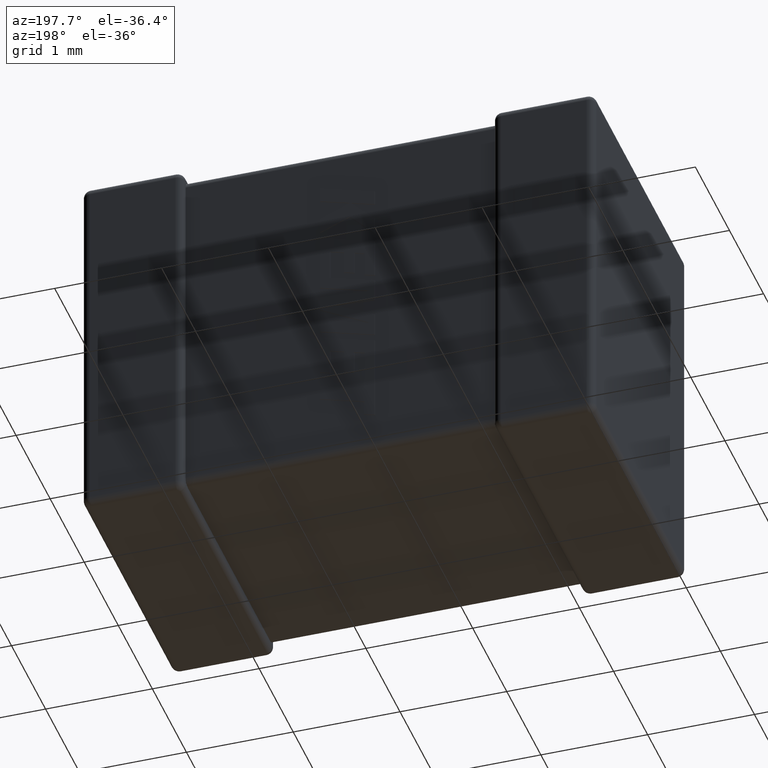
[diagram: clean part render]
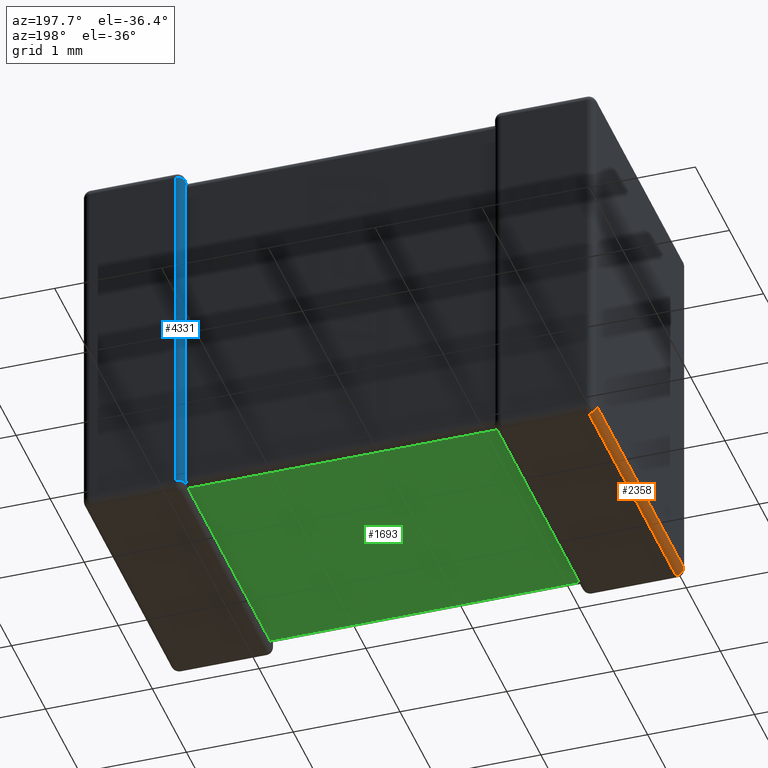
[diagram: same view with three faces highlighted in distinct colors, each labeled with its STEP entity id]
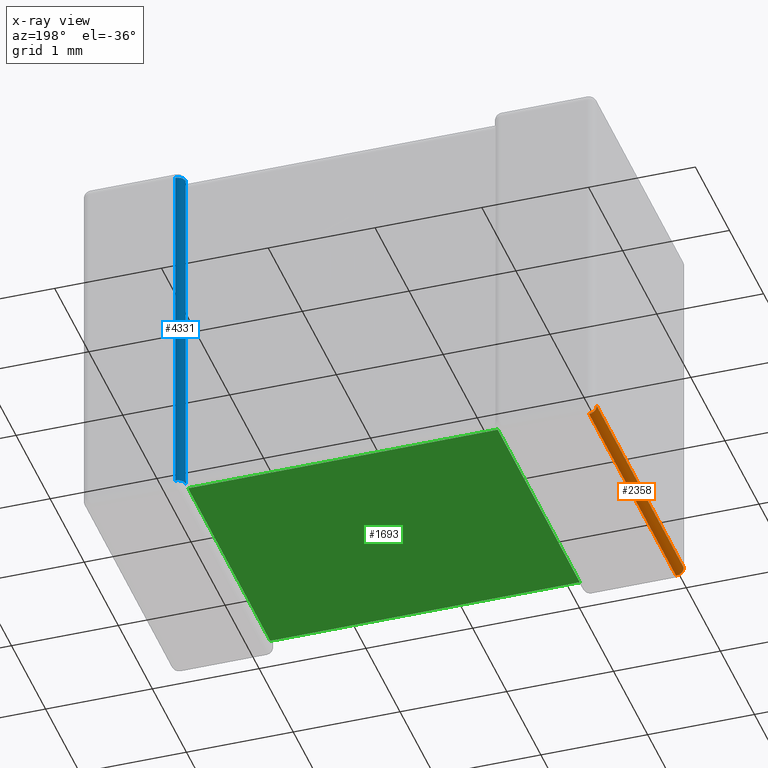
[diagram: x-ray of the same camera — body ghosted, the three highlighted faces saturated]
A machine part, auxiliary view with three faces highlighted in distinct colors.
The next image is the same camera in x-ray (body ghosted, the three faces saturated) — at least one of them is partly hidden behind the body in this view.
Their STEP definitions:

[orange] entity #2358 — the highlighted cylindrical surface (edge-blend (fillet) strip) has radius 0.0728 mm, axis along (0, -1, 0).
#1 = AXIS2_PLACEMENT_3D ( 'NONE', #931, #260, #1677 ) ;
#225 = CARTESIAN_POINT ( 'NONE',  ( 0.07279999999999960114, 0.000000000000000000, -3.427200000000000024 ) ) ;
#260 = DIRECTION ( 'NONE',  ( -0.000000000000000000, -1.000000000000000000, -0.000000000000000000 ) ) ;
#332 = DIRECTION ( 'NONE',  ( 0.000000000000000000, 0.000000000000000000, -1.000000000000000000 ) ) ;
#553 = VERTEX_POINT ( 'NONE', #3315 ) ;
#758 = VERTEX_POINT ( 'NONE', #1848 ) ;
#900 = VECTOR ( 'NONE', #2300, 1000.000000000000000 ) ;
#931 = CARTESIAN_POINT ( 'NONE',  ( 0.07279999999999960114, 2.627200000000000202, -3.427200000000000024 ) ) ;
#938 = LINE ( 'NONE', #4113, #900 ) ;
#1148 = CARTESIAN_POINT ( 'NONE',  ( 0.000000000000000000, 2.627200000000000202, -3.427200000000000024 ) ) ;
#1274 = EDGE_CURVE ( 'NONE', #3828, #758, #3599, .T. ) ;
#1370 = EDGE_CURVE ( 'NONE', #2611, #3828, #3738, .T. ) ;
#1421 = EDGE_CURVE ( 'NONE', #758, #553, #938, .T. ) ;
#1583 = AXIS2_PLACEMENT_3D ( 'NONE', #4298, #3971, #2229 ) ;
#1665 = AXIS2_PLACEMENT_3D ( 'NONE', #225, #1690, #332 ) ;
#1677 = DIRECTION ( 'NONE',  ( 0.000000000000000000, 0.000000000000000000, 1.000000000000000000 ) ) ;
#1690 = DIRECTION ( 'NONE',  ( 0.000000000000000000, -1.000000000000000000, 0.000000000000000000 ) ) ;
#1833 = CARTESIAN_POINT ( 'NONE',  ( 0.000000000000000000, 0.07280000000000000360, -3.427200000000000024 ) ) ;
#1848 = CARTESIAN_POINT ( 'NONE',  ( 0.07279999999999960114, 0.07280000000000000360, -3.500000000000000000 ) ) ;
#1939 = ORIENTED_EDGE ( 'NONE', *, *, #1421, .F. ) ;
#1972 = ORIENTED_EDGE ( 'NONE', *, *, #1370, .F. ) ;
#2032 = ORIENTED_EDGE ( 'NONE', *, *, #1274, .F. ) ;
#2229 = DIRECTION ( 'NONE',  ( 0.000000000000000000, 0.000000000000000000, -1.000000000000000000 ) ) ;
#2300 = DIRECTION ( 'NONE',  ( 0.000000000000000000, 1.000000000000000000, -0.000000000000000000 ) ) ;
#2358 = ADVANCED_FACE ( 'NONE', ( #3839 ), #4272, .T. ) ;
#2380 = CIRCLE ( 'NONE', #1, 0.07280000000000003135 ) ;
#2500 = VECTOR ( 'NONE', #2729, 1000.000000000000000 ) ;
#2611 = VERTEX_POINT ( 'NONE', #1148 ) ;
#2729 = DIRECTION ( 'NONE',  ( -0.000000000000000000, -1.000000000000000000, -0.000000000000000000 ) ) ;
#3315 = CARTESIAN_POINT ( 'NONE',  ( 0.07279999999999960114, 2.627200000000000202, -3.500000000000000000 ) ) ;
#3338 = ORIENTED_EDGE ( 'NONE', *, *, #4233, .T. ) ;
#3599 = CIRCLE ( 'NONE', #1583, 0.07280000000000003135 ) ;
#3738 = LINE ( 'NONE', #3803, #2500 ) ;
#3803 = CARTESIAN_POINT ( 'NONE',  ( 0.000000000000000000, 0.000000000000000000, -3.427200000000000024 ) ) ;
#3828 = VERTEX_POINT ( 'NONE', #1833 ) ;
#3839 = FACE_OUTER_BOUND ( 'NONE', #4522, .T. ) ;
#3971 = DIRECTION ( 'NONE',  ( -0.000000000000000000, -1.000000000000000000, 0.000000000000000000 ) ) ;
#4113 = CARTESIAN_POINT ( 'NONE',  ( 0.07279999999999960114, 2.700000000000000178, -3.500000000000000000 ) ) ;
#4233 = EDGE_CURVE ( 'NONE', #2611, #553, #2380, .T. ) ;
#4272 = CYLINDRICAL_SURFACE ( 'NONE', #1665, 0.07280000000000003135 ) ;
#4298 = CARTESIAN_POINT ( 'NONE',  ( 0.07280000000000000360, 0.07280000000000000360, -3.427200000000000024 ) ) ;
#4522 = EDGE_LOOP ( 'NONE', ( #3338, #1939, #2032, #1972 ) ) ;

[blue] entity #4331 — the highlighted cylindrical surface (edge-blend (fillet) strip) has radius 0.0728 mm, axis along (-0, 0, 1).
#40 = CARTESIAN_POINT ( 'NONE',  ( 3.849998199799374188, 2.626900786478270966, -3.362009803912833661 ) ) ;
#67 = DIRECTION ( 'NONE',  ( -0.000000000000000000, 0.000000000000000000, 1.000000000000000000 ) ) ;
#143 = CIRCLE ( 'NONE', #2281, 0.07280000000000003135 ) ;
#152 = DIRECTION ( 'NONE',  ( 0.000000000000000000, 0.000000000000000000, -1.000000000000000000 ) ) ;
#172 = CARTESIAN_POINT ( 'NONE',  ( 3.922799999999999621, 2.627200000000000202, -0.07280000000000000360 ) ) ;
#238 = B_SPLINE_CURVE_WITH_KNOTS ( 'NONE', 3,
 ( #4314, #2865, #2533, #1821, #4360, #2226, #2607, #40, #2508, #4296 ),
 .UNSPECIFIED., .F., .F.,
 ( 4, 3, 3, 4 ),
 ( 0.000000000000000000, 2.291429526389496951E-05, 4.570773099061646832E-05, 5.697602054444616745E-05 ),
 .UNSPECIFIED. ) ;
#298 = DIRECTION ( 'NONE',  ( -0.000000000000000000, -0.000000000000000000, 1.000000000000000000 ) ) ;
#343 = DIRECTION ( 'NONE',  ( 1.000000000000000000, 0.000000000000000000, 0.000000000000000000 ) ) ;
#432 = EDGE_CURVE ( 'NONE', #2326, #3500, #3665, .T. ) ;
#483 = VERTEX_POINT ( 'NONE', #1322 ) ;
#600 = B_SPLINE_CURVE_WITH_KNOTS ( 'NONE', 3,
 ( #3977, #752, #1200, #4022, #2306, #2691, #3645, #2663, #4071, #3014 ),
 .UNSPECIFIED., .F., .F.,
 ( 4, 3, 3, 4 ),
 ( 0.000000000000000000, 2.422644186407607803E-05, 4.850291313082676114E-05, 5.704030738691063954E-05 ),
 .UNSPECIFIED. ) ;
#699 = EDGE_CURVE ( 'NONE', #1639, #3583, #238, .T. ) ;
#704 = VERTEX_POINT ( 'NONE', #1080 ) ;
#752 = CARTESIAN_POINT ( 'NONE',  ( 3.849999999999999645, 2.627200000000000646, -0.1375245193786462650 ) ) ;
#775 = EDGE_CURVE ( 'NONE', #483, #2326, #3733, .T. ) ;
#812 = VERTEX_POINT ( 'NONE', #4058 ) ;
#838 = VECTOR ( 'NONE', #298, 1000.000000000000000 ) ;
#856 = CARTESIAN_POINT ( 'NONE',  ( 3.849999999999999645, 2.627200000000000646, -0.1456000000000000627 ) ) ;
#941 = DIRECTION ( 'NONE',  ( 1.000000000000000000, 0.000000000000000000, 3.723221746172768904E-16 ) ) ;
#1080 = CARTESIAN_POINT ( 'NONE',  ( 3.849999999999999645, 2.627200000000000202, -3.427200000000000024 ) ) ;
#1116 = CARTESIAN_POINT ( 'NONE',  ( 3.853192632527817629, 2.605877373670380859, -3.405877373670381125 ) ) ;
#1200 = CARTESIAN_POINT ( 'NONE',  ( 3.849964757895329548, 2.625818475274032338, -0.1293385981646564264 ) ) ;
#1205 = CARTESIAN_POINT ( 'NONE',  ( 3.922799999999999621, 2.627200000000000202, -3.427200000000000024 ) ) ;
#1322 = CARTESIAN_POINT ( 'NONE',  ( 3.922799999999999621, 2.700000000000000178, -3.427200000000000024 ) ) ;
#1373 = ORIENTED_EDGE ( 'NONE', *, *, #432, .F. ) ;
#1400 = CARTESIAN_POINT ( 'NONE',  ( 3.849999999999999645, 2.627200000000000202, -0.07280000000000003135 ) ) ;
#1575 = CARTESIAN_POINT ( 'NONE',  ( 3.853192632527817629, 2.605877373670380859, -3.405877373670381125 ) ) ;
#1639 = VERTEX_POINT ( 'NONE', #1575 ) ;
#1801 = EDGE_CURVE ( 'NONE', #704, #1639, #4551, .T. ) ;
#1814 = CARTESIAN_POINT ( 'NONE',  ( 3.849999999999999645, 2.627200000000000202, -3.427200000000000024 ) ) ;
#1821 = CARTESIAN_POINT ( 'NONE',  ( 3.850435176013913274, 2.619251902777221641, -3.387476739654533553 ) ) ;
#1914 = CARTESIAN_POINT ( 'NONE',  ( 3.922799999999999621, 2.700000000000000178, 0.000000000000000000 ) ) ;
#2049 = CARTESIAN_POINT ( 'NONE',  ( 3.849999999999999645, 2.627200000000000202, -0.07280000000000003135 ) ) ;
#2148 = DIRECTION ( 'NONE',  ( -0.000000000000000000, 0.000000000000000000, 1.000000000000000000 ) ) ;
#2226 = CARTESIAN_POINT ( 'NONE',  ( 3.850020027576705139, 2.625119784657448108, -3.373281067532072797 ) ) ;
#2281 = AXIS2_PLACEMENT_3D ( 'NONE', #1205, #152, #2355 ) ;
#2306 = CARTESIAN_POINT ( 'NONE',  ( 3.850258766749322881, 2.620516760541457213, -0.1140762683298839758 ) ) ;
#2326 = VERTEX_POINT ( 'NONE', #4559 ) ;
#2355 = DIRECTION ( 'NONE',  ( -1.000000000000000000, 0.000000000000000000, 0.000000000000000000 ) ) ;
#2476 = CYLINDRICAL_SURFACE ( 'NONE', #2761, 0.07279999999999960114 ) ;
#2508 = CARTESIAN_POINT ( 'NONE',  ( 3.849999999999999645, 2.627200000000000646, -3.358199106259449618 ) ) ;
#2518 = LINE ( 'NONE', #4302, #838 ) ;
#2533 = CARTESIAN_POINT ( 'NONE',  ( 3.850815866597120607, 2.615785839608291585, -3.394272475691364477 ) ) ;
#2607 = CARTESIAN_POINT ( 'NONE',  ( 3.850005466920571884, 2.626307837599945127, -3.365762345343281225 ) ) ;
#2663 = CARTESIAN_POINT ( 'NONE',  ( 3.852094387556573185, 2.609768954912126127, -0.09824730024223346514 ) ) ;
#2691 = CARTESIAN_POINT ( 'NONE',  ( 3.850611154794317592, 2.616502303313010369, -0.1067760143052594174 ) ) ;
#2761 = AXIS2_PLACEMENT_3D ( 'NONE', #4028, #2148, #343 ) ;
#2782 = DIRECTION ( 'NONE',  ( -3.723221746172747703E-16, 0.000000000000000000, 1.000000000000000000 ) ) ;
#2835 = VERTEX_POINT ( 'NONE', #856 ) ;
#2865 = CARTESIAN_POINT ( 'NONE',  ( 3.851575672170316267, 2.611155914505484343, -3.400598832835277641 ) ) ;
#2907 = ORIENTED_EDGE ( 'NONE', *, *, #3834, .T. ) ;
#2943 = AXIS2_PLACEMENT_3D ( 'NONE', #172, #2782, #941 ) ;
#3014 = CARTESIAN_POINT ( 'NONE',  ( 3.853192632527817629, 2.605877373670380859, -0.09412262632961920783 ) ) ;
#3185 = EDGE_CURVE ( 'NONE', #704, #483, #143, .T. ) ;
#3265 = CARTESIAN_POINT ( 'NONE',  ( 3.851072090335042830, 2.612799849230893923, -3.412799849230893745 ) ) ;
#3280 = ORIENTED_EDGE ( 'NONE', *, *, #775, .F. ) ;
#3303 = CARTESIAN_POINT ( 'NONE',  ( 3.849999999999999645, 2.627200000000000646, -3.354400000000000048 ) ) ;
#3361 = ORIENTED_EDGE ( 'NONE', *, *, #3746, .T. ) ;
#3376 = VECTOR ( 'NONE', #67, 1000.000000000000000 ) ;
#3421 = ORIENTED_EDGE ( 'NONE', *, *, #1801, .T. ) ;
#3447 = ORIENTED_EDGE ( 'NONE', *, *, #699, .T. ) ;
#3500 = VERTEX_POINT ( 'NONE', #1400 ) ;
#3541 = CARTESIAN_POINT ( 'NONE',  ( 3.851072090335042830, 2.612799849230893923, -0.08720015076910662966 ) ) ;
#3583 = VERTEX_POINT ( 'NONE', #3303 ) ;
#3643 = ORIENTED_EDGE ( 'NONE', *, *, #3185, .F. ) ;
#3645 = CARTESIAN_POINT ( 'NONE',  ( 3.851704486567830266, 2.611538966515066562, -0.1004892639653244407 ) ) ;
#3665 = CIRCLE ( 'NONE', #2943, 0.07279999999999960114 ) ;
#3733 = LINE ( 'NONE', #1914, #3376 ) ;
#3746 = EDGE_CURVE ( 'NONE', #3583, #2835, #2518, .T. ) ;
#3834 = EDGE_CURVE ( 'NONE', #2835, #812, #600, .T. ) ;
#3874 = CARTESIAN_POINT ( 'NONE',  ( 3.853192632527817629, 2.605877373670380859, -0.09412262632961920783 ) ) ;
#3917 =( BOUNDED_CURVE ( )  B_SPLINE_CURVE ( 3, ( #2049, #4570, #3541, #3874 ),
 .UNSPECIFIED., .F., .T. ) 
 B_SPLINE_CURVE_WITH_KNOTS ( ( 4, 4 ),
 ( 1.570796326794896558, 1.868047688116101002 ),
 .UNSPECIFIED. ) 
 CURVE ( )  GEOMETRIC_REPRESENTATION_ITEM ( )  RATIONAL_B_SPLINE_CURVE ( ( 1.000000000000000000, 0.9926503465430338569, 0.9926503465430338569, 1.000000000000000000 ) ) 
 REPRESENTATION_ITEM ( '' )  );
#3960 = CARTESIAN_POINT ( 'NONE',  ( 3.850000000000000089, 2.619960016085844501, -3.419960016085844767 ) ) ;
#3977 = CARTESIAN_POINT ( 'NONE',  ( 3.849999999999999645, 2.627200000000000646, -0.1456000000000000627 ) ) ;
#4022 = CARTESIAN_POINT ( 'NONE',  ( 3.850111683549547248, 2.623169038377902051, -0.1217115224307057791 ) ) ;
#4028 = CARTESIAN_POINT ( 'NONE',  ( 3.922799999999999621, 2.627200000000000202, 0.000000000000000000 ) ) ;
#4058 = CARTESIAN_POINT ( 'NONE',  ( 3.853192632527817629, 2.605877373670380859, -0.09412262632961920783 ) ) ;
#4071 = CARTESIAN_POINT ( 'NONE',  ( 3.852582322781695545, 2.607869719926278140, -0.09611497258517735787 ) ) ;
#4241 = FACE_OUTER_BOUND ( 'NONE', #4490, .T. ) ;
#4254 = EDGE_CURVE ( 'NONE', #3500, #812, #3917, .T. ) ;
#4296 = CARTESIAN_POINT ( 'NONE',  ( 3.849999999999999645, 2.627200000000000646, -3.354400000000000048 ) ) ;
#4302 = CARTESIAN_POINT ( 'NONE',  ( 3.849999999999999645, 2.627200000000000646, -3.500000000000000000 ) ) ;
#4314 = CARTESIAN_POINT ( 'NONE',  ( 3.853192632527817629, 2.605877373670380859, -3.405877373670381125 ) ) ;
#4317 = ORIENTED_EDGE ( 'NONE', *, *, #4254, .F. ) ;
#4331 = ADVANCED_FACE ( 'NONE', ( #4241 ), #2476, .T. ) ;
#4360 = CARTESIAN_POINT ( 'NONE',  ( 3.850055785151107468, 2.622706132417264691, -3.380704205023675080 ) ) ;
#4490 = EDGE_LOOP ( 'NONE', ( #1373, #3280, #3643, #3421, #3447, #3361, #2907, #4317 ) ) ;
#4551 =( BOUNDED_CURVE ( )  B_SPLINE_CURVE ( 3, ( #1814, #3960, #3265, #1116 ),
 .UNSPECIFIED., .F., .T. ) 
 B_SPLINE_CURVE_WITH_KNOTS ( ( 4, 4 ),
 ( 1.570796326794896558, 1.868047688116100558 ),
 .UNSPECIFIED. ) 
 CURVE ( )  GEOMETRIC_REPRESENTATION_ITEM ( )  RATIONAL_B_SPLINE_CURVE ( ( 1.000000000000000000, 0.9926503465430338569, 0.9926503465430338569, 1.000000000000000000 ) ) 
 REPRESENTATION_ITEM ( '' )  );
#4559 = CARTESIAN_POINT ( 'NONE',  ( 3.922799999999999621, 2.700000000000000178, -0.07280000000000000360 ) ) ;
#4570 = CARTESIAN_POINT ( 'NONE',  ( 3.850000000000000089, 2.619960016085844501, -0.08003998391415562130 ) ) ;

[green] entity #1693 — the highlighted planar face has unit normal (-0, 0, 1).
#241 = PLANE ( 'NONE',  #1055 ) ;
#261 = CARTESIAN_POINT ( 'NONE',  ( 0.9499999999999998446, 0.000000000000000000, -3.427200000000000024 ) ) ;
#268 = ORIENTED_EDGE ( 'NONE', *, *, #1415, .T. ) ;
#288 = CARTESIAN_POINT ( 'NONE',  ( 3.849999999999999645, 0.000000000000000000, -3.427200000000000024 ) ) ;
#324 = VERTEX_POINT ( 'NONE', #3930 ) ;
#584 = EDGE_CURVE ( 'NONE', #4166, #4318, #1776, .T. ) ;
#839 = LINE ( 'NONE', #2707, #4508 ) ;
#937 = DIRECTION ( 'NONE',  ( -0.000000000000000000, 1.000000000000000000, -0.000000000000000000 ) ) ;
#1020 = CARTESIAN_POINT ( 'NONE',  ( 3.849999999999999645, 2.554400000000000670, -3.427200000000000024 ) ) ;
#1055 = AXIS2_PLACEMENT_3D ( 'NONE', #261, #2793, #1700 ) ;
#1159 = CARTESIAN_POINT ( 'NONE',  ( 0.9499999999999998446, 0.000000000000000000, -3.427200000000000024 ) ) ;
#1283 = EDGE_CURVE ( 'NONE', #324, #3517, #3274, .T. ) ;
#1415 = EDGE_CURVE ( 'NONE', #4166, #324, #839, .T. ) ;
#1467 = CARTESIAN_POINT ( 'NONE',  ( 0.9499999999999995115, 2.554400000000000226, -3.427200000000000024 ) ) ;
#1489 = CARTESIAN_POINT ( 'NONE',  ( 0.9499999999999998446, 2.554400000000000226, -3.427200000000000024 ) ) ;
#1693 = ADVANCED_FACE ( 'NONE', ( #3060 ), #241, .F. ) ;
#1700 = DIRECTION ( 'NONE',  ( 1.000000000000000000, 0.000000000000000000, 0.000000000000000000 ) ) ;
#1731 = VECTOR ( 'NONE', #937, 1000.000000000000000 ) ;
#1764 = LINE ( 'NONE', #1467, #3305 ) ;
#1776 = LINE ( 'NONE', #288, #1731 ) ;
#2039 = VECTOR ( 'NONE', #2537, 1000.000000000000000 ) ;
#2131 = EDGE_CURVE ( 'NONE', #3517, #4318, #1764, .T. ) ;
#2314 = ORIENTED_EDGE ( 'NONE', *, *, #2131, .T. ) ;
#2537 = DIRECTION ( 'NONE',  ( -0.000000000000000000, 1.000000000000000000, -0.000000000000000000 ) ) ;
#2707 = CARTESIAN_POINT ( 'NONE',  ( 0.9499999999999999556, 0.1455999999999991745, -3.427200000000000024 ) ) ;
#2750 = CARTESIAN_POINT ( 'NONE',  ( 3.849999999999999645, 0.1455999999999987304, -3.427200000000000024 ) ) ;
#2793 = DIRECTION ( 'NONE',  ( -0.000000000000000000, 0.000000000000000000, 1.000000000000000000 ) ) ;
#2923 = DIRECTION ( 'NONE',  ( 1.000000000000000000, 1.495451272393799542E-16, 0.000000000000000000 ) ) ;
#3060 = FACE_OUTER_BOUND ( 'NONE', #3080, .T. ) ;
#3080 = EDGE_LOOP ( 'NONE', ( #3770, #268, #3731, #2314 ) ) ;
#3274 = LINE ( 'NONE', #1159, #2039 ) ;
#3305 = VECTOR ( 'NONE', #2923, 1000.000000000000000 ) ;
#3359 = DIRECTION ( 'NONE',  ( -1.000000000000000000, 1.495451272393799542E-16, -0.000000000000000000 ) ) ;
#3517 = VERTEX_POINT ( 'NONE', #1489 ) ;
#3731 = ORIENTED_EDGE ( 'NONE', *, *, #1283, .T. ) ;
#3770 = ORIENTED_EDGE ( 'NONE', *, *, #584, .F. ) ;
#3930 = CARTESIAN_POINT ( 'NONE',  ( 0.9499999999999998446, 0.1455999999999991745, -3.427200000000000024 ) ) ;
#4166 = VERTEX_POINT ( 'NONE', #2750 ) ;
#4318 = VERTEX_POINT ( 'NONE', #1020 ) ;
#4508 = VECTOR ( 'NONE', #3359, 1000.000000000000000 ) ;